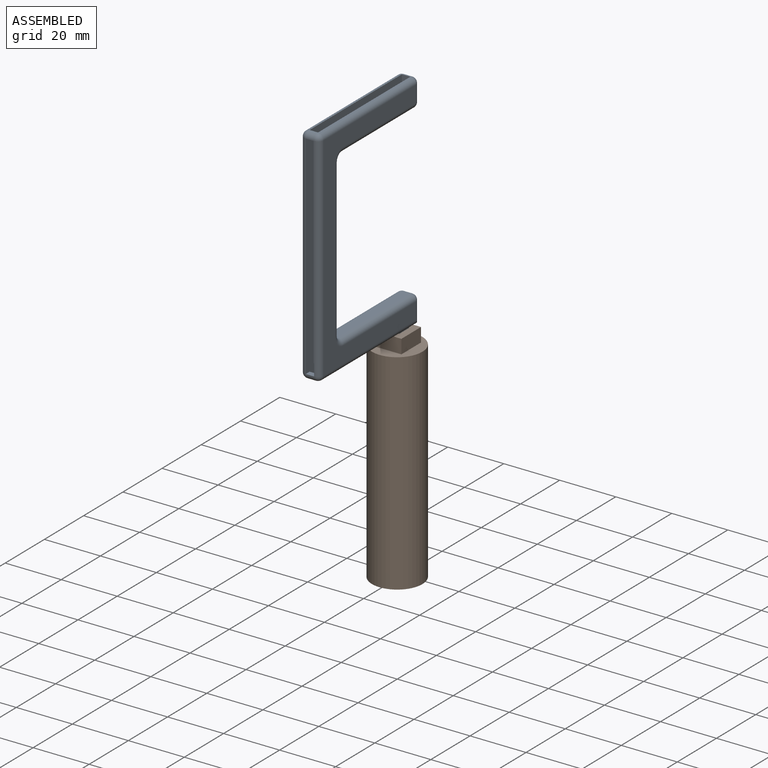
[diagram: assembled view]
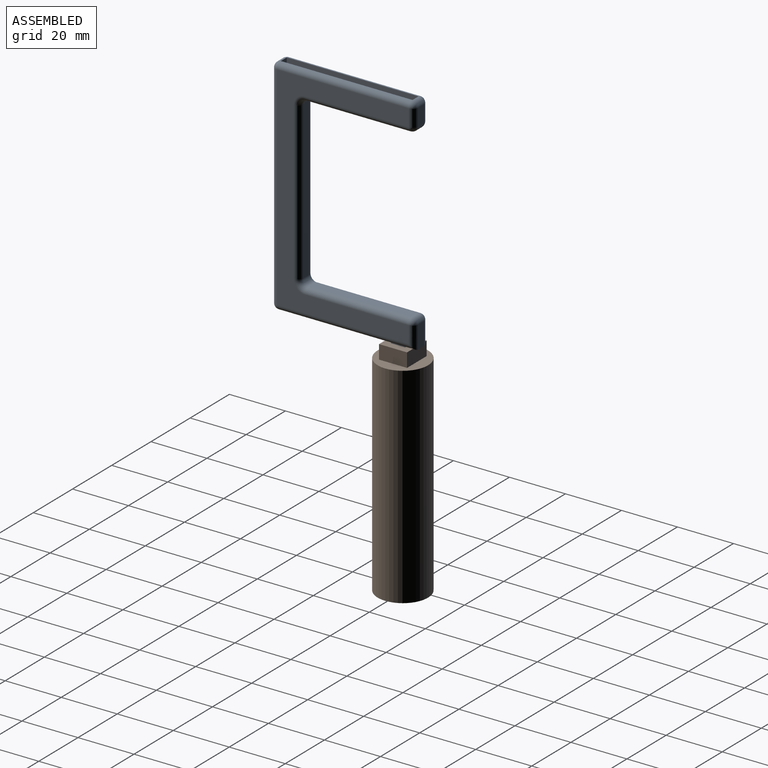
[diagram: assembled view, second angle]
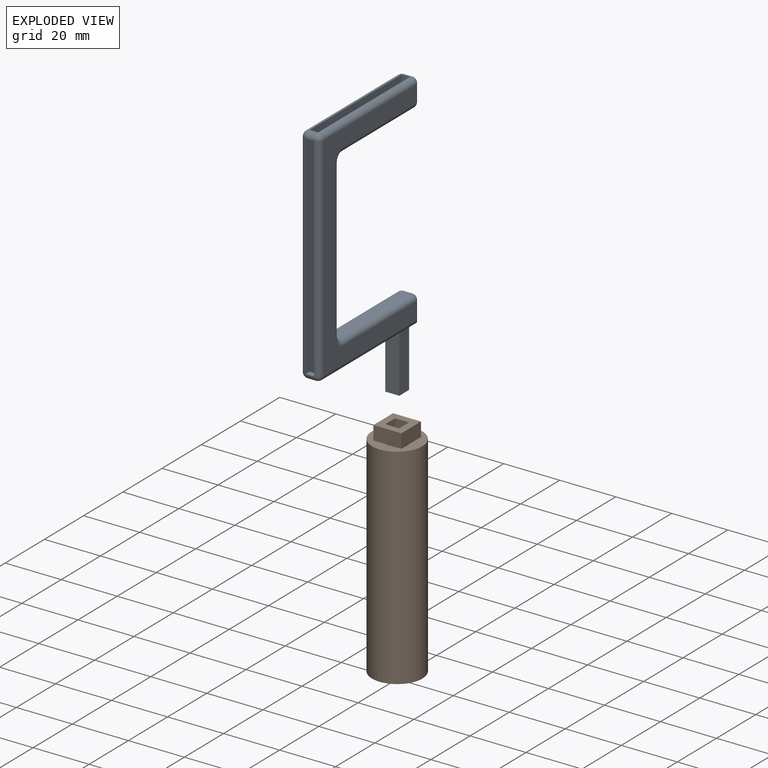
[diagram: exploded view]
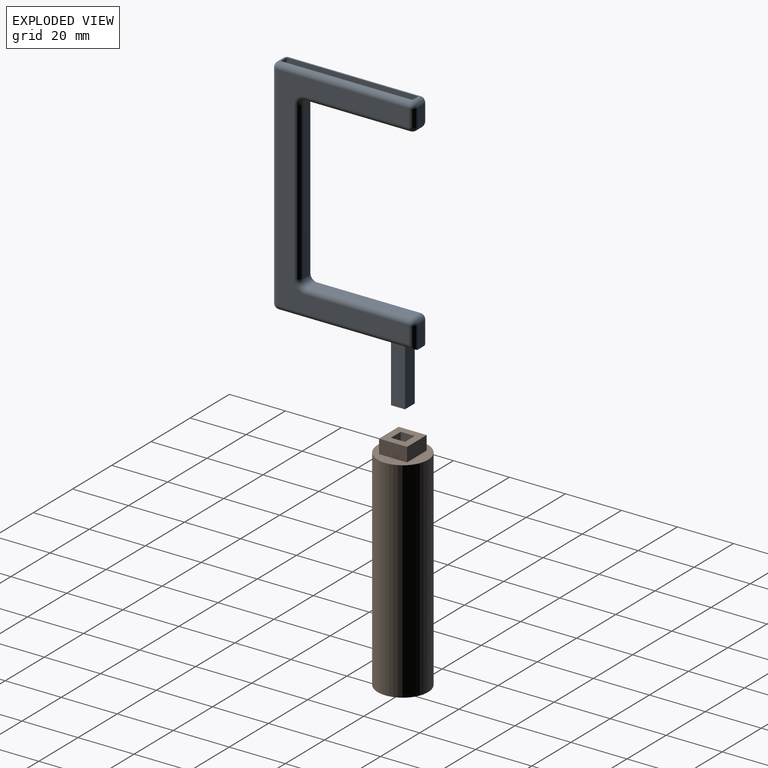
[diagram: exploded view, second angle]
ASSEMBLY  parts=2 mates=3
PART A: 60 faces, bbox 100x51x7 mm
  f0: plane 4x3mm, normal (-1,0,0), area 12mm2, adj f6,f9,f33,f48
  f1: plane 76x47mm, normal (0,0,1), area 954.9mm2, adj f20,f25,f29,f30,f37,f41,f42,f45
  f2: plane 6x3mm, normal (0,1,0), area 18mm2, adj f14,f16,f20,f21
  f3: plane 20.27x5mm, normal (0,0,1), area 101.3mm2, adj f4,f6,f7,f48
  f4: plane 24x5mm, normal (0,-1,0), area 112.2mm2, adj f3,f5,f7,f33,f48,f51,f53,f59
  f5: plane 20.27x5mm, normal (0,0,-1), area 101.3mm2, adj f4,f6,f7,f33
  f6: plane 20.27x5mm, normal (0,1,0), area 100.2mm2, adj f0,f3,f5,f7,f33,f48
  f7: plane 5x5mm, normal (-1,0,0), area 25mm2, adj f3,f4,f5,f6
  f8: plane 76x47mm, normal (0,0,-1), area 954.9mm2, adj f14,f15,f18,f22,f23,f28,f32,f33
  f9: plane 8x3mm, normal (0,1,0), area 24mm2, adj f0,f34,f44,f49
  f10: plane 37x3mm, normal (1,0,0), area 111mm2, adj f35,f36,f44,f45
  f11: plane 56x3mm, normal (0,1,0), area 168mm2, adj f23,f24,f36,f37
  f12: plane 37x3mm, normal (-1,0,0), area 111mm2, adj f15,f16,f24,f25
  f13: sphere r=2mm, area 6.3mm2, adj f14,f15,f16
  f14: cylinder r=2mm len=6mm, axis (1,0,0), area 18.8mm2, adj f2,f8,f13,f17
  f15: cylinder r=2mm len=37mm, axis (0,1,0), area 116.2mm2, adj f8,f12,f13,f18
  f16: cylinder r=2mm len=3mm, axis (0,0,1), area 9.4mm2, adj f2,f12,f13,f19
  f17: sphere r=2mm, area 6.3mm2, adj f14,f21,f22
  f18: torus R=4mm, axis (0,0,1), area 13.5mm2, adj f8,f15,f23,f24
  f19: sphere r=2mm, area 6.3mm2, adj f16,f20,f25
  f20: cylinder r=2mm len=6mm, axis (-1,0,0), area 18.8mm2, adj f1,f2,f19,f26
  f21: cylinder r=2mm len=3mm, axis (0,0,-1), area 9.4mm2, adj f2,f17,f26,f52
  f22: cylinder r=2mm len=47mm, axis (0,-1,0), area 147.7mm2, adj f8,f17,f27,f51
  f23: cylinder r=2mm len=56mm, axis (1,0,0), area 175.9mm2, adj f8,f11,f18,f28
  f24: cylinder r=2mm len=3mm, axis (0,0,1), area 9.4mm2, adj f11,f12,f18,f29
  f25: cylinder r=2mm len=37mm, axis (0,-1,0), area 116.2mm2, adj f1,f12,f19,f29
  f26: sphere r=2mm, area 6.3mm2, adj f20,f21,f30
  f27: sphere r=2mm, area 6.3mm2, adj f22,f31,f32
  f28: torus R=4mm, axis (0,0,1), area 13.5mm2, adj f8,f23,f35,f36
  f29: torus R=4mm, axis (0,0,1), area 13.5mm2, adj f1,f24,f25,f37
  f30: cylinder r=2mm len=47mm, axis (0,1,0), area 147.7mm2, adj f1,f26,f38,f53
  f31: cylinder r=2mm len=3mm, axis (0,0,1), area 9.4mm2, adj f27,f38,f50,f55
  f32: cylinder r=2mm len=76mm, axis (-1,0,0), area 238.8mm2, adj f8,f27,f39,f51
  f33: cylinder r=2mm len=49mm, axis (0,1,0), area 146.4mm2, adj f0,f4,f5,f6,f8,f34,f39,f51
  f34: cylinder r=2mm len=8mm, axis (1,0,0), area 22.8mm2, adj f8,f9,f33,f40
  f35: cylinder r=2mm len=37mm, axis (0,-1,0), area 116.2mm2, adj f8,f10,f28,f40
  f36: cylinder r=2mm len=3mm, axis (0,0,-1), area 9.4mm2, adj f10,f11,f28,f41
  f37: cylinder r=2mm len=56mm, axis (-1,0,0), area 175.9mm2, adj f1,f11,f29,f41
  f38: sphere r=2mm, area 6.3mm2, adj f30,f31,f42
  f39: sphere r=2mm, area 6.3mm2, adj f32,f33,f43
  f40: sphere r=2mm, area 6.3mm2, adj f34,f35,f44
  f41: torus R=4mm, axis (0,0,1), area 13.5mm2, adj f1,f36,f37,f45
  f42: cylinder r=2mm len=76mm, axis (1,0,0), area 238.8mm2, adj f1,f38,f46,f53
  f43: cylinder r=2mm len=3mm, axis (0,0,-1), area 9.4mm2, adj f39,f46,f56,f58
  f44: cylinder r=2mm len=3mm, axis (0,0,-1), area 9.4mm2, adj f9,f10,f40,f47
  f45: cylinder r=2mm len=37mm, axis (0,1,0), area 116.2mm2, adj f1,f10,f41,f47
  f46: sphere r=2mm, area 6.3mm2, adj f42,f43,f48
  f47: sphere r=2mm, area 6.3mm2, adj f44,f45,f49
  f48: cylinder r=2mm len=49mm, axis (0,-1,0), area 146.4mm2, adj f0,f1,f3,f4,f6,f46,f49,f53
  f49: cylinder r=2mm len=8mm, axis (-1,0,0), area 22.8mm2, adj f1,f9,f47,f48
  f50: plane 3x2mm, normal (0,1,0), area 6mm2, adj f31,f51,f53,f55
  f51: plane 80x49mm, normal (0,0,1), area 644mm2, adj f4,f22,f32,f33,f50,f52,f54,f55
  f52: plane 4x3mm, normal (0,-1,0), area 12mm2, adj f21,f51,f53,f54
  f53: plane 80x49mm, normal (0,0,-1), area 644mm2, adj f4,f30,f42,f48,f50,f52,f54,f55
  f54: plane 45x3mm, normal (1,0,0), area 135mm2, adj f51,f52,f53,f57
  f55: plane 3x2mm, normal (-1,0,0), area 6mm2, adj f31,f50,f51,f53
  f56: plane 3x2mm, normal (1,0,0), area 6mm2, adj f43,f51,f53,f58
  f57: plane 72x3mm, normal (0,-1,0), area 216mm2, adj f51,f53,f54,f59
  f58: plane 3x2mm, normal (0,1,0), area 6mm2, adj f43,f51,f53,f56
  f59: plane 38x3mm, normal (-1,0,0), area 114mm2, adj f4,f51,f53,f57
PART B: 12 faces, bbox 18x18x80 mm
  f0: plane 80x5mm, normal (0,-1,0), area 400mm2, adj f1,f7,f8,f9
  f1: plane 80x5mm, normal (-1,0,0), area 400mm2, adj f0,f2,f8,f9
  f2: plane 80x5mm, normal (0,1,0), area 400mm2, adj f1,f7,f8,f9
  f3: plane 10x5mm, normal (1,0,0), area 50mm2, adj f4,f6,f8,f11
  f4: plane 10x5mm, normal (0,1,0), area 50mm2, adj f3,f5,f8,f11
  f5: plane 10x5mm, normal (-1,0,0), area 50mm2, adj f4,f6,f8,f11
  f6: plane 10x5mm, normal (0,-1,0), area 50mm2, adj f3,f5,f8,f11
  f7: plane 80x5mm, normal (1,0,0), area 400mm2, adj f0,f2,f8,f9
  f8: plane 10x10mm, normal (0,0,1), area 75mm2, adj f0,f1,f2,f3,f4,f5,f6,f7
  f9: plane 18x18mm, normal (0,0,-1), area 229.5mm2, adj f0,f1,f2,f7,f10
  f10: cylinder r=9mm len=75mm, axis (0,0,-1), area 4241.2mm2, adj f9,f11
  f11: plane 18x18mm, normal (0,0,1), area 154.5mm2, adj f3,f4,f5,f6,f10
PLACE A rot(axis=(0,-1,0),90deg) t=(3.5,-5.5,120)mm
PLACE B at identity fixed
MATE planar A.f6 <-> B.f0  axis (0,1,0) through (0,2.5,70.02)mm
MATE planar A.f5 <-> B.f1  axis (1,0,0) through (2.5,0,70.13)mm
MATE planar A.f0 <-> B.f8  axis (0,0,-1) through (0,4.5,80)mm
